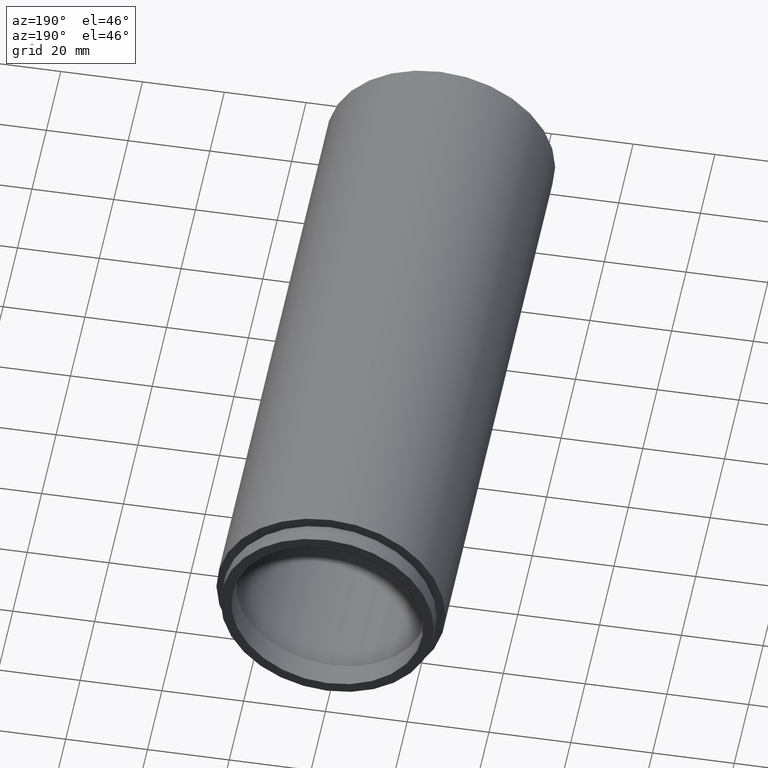
[diagram: clean part render]
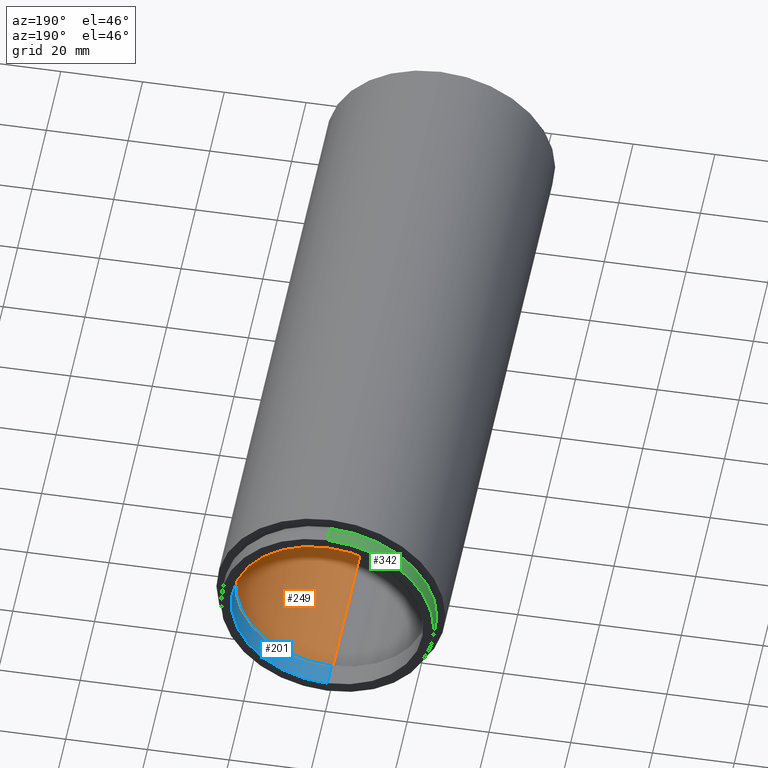
[diagram: same view with three faces highlighted in distinct colors, each labeled with its STEP entity id]
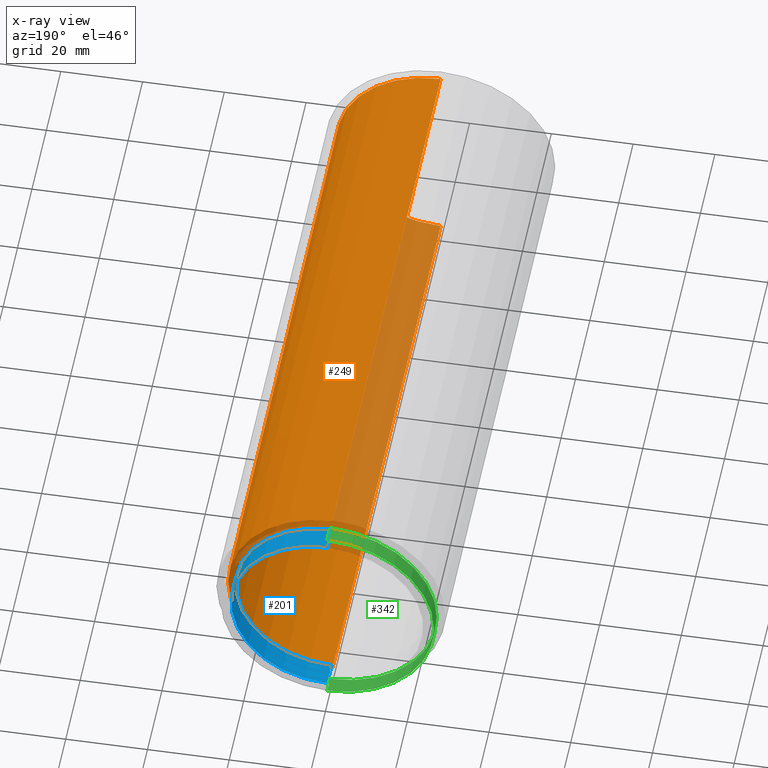
[diagram: x-ray of the same camera — body ghosted, the three highlighted faces saturated]
A machine part, auxiliary view with three faces highlighted in distinct colors.
The next image is the same camera in x-ray (body ghosted, the three faces saturated) — at least one of them is partly hidden behind the body in this view.
Their STEP definitions:

[orange] entity #249 — the highlighted cylindrical surface (partial cylindrical patch) has radius 25.5 mm, axis along (-0, 1, -0).
#13 = CARTESIAN_POINT ( 'NONE',  ( 0.0000000000000000000, -2.775557561562891400E-014, 25.50000000000001800 ) ) ;
#29 = CARTESIAN_POINT ( 'NONE',  ( 0.0000000000000000000, 150.3999999999999800, 25.50000000000001800 ) ) ;
#35 = CARTESIAN_POINT ( 'NONE',  ( 0.0000000000000000000, 161.3761669434274500, 25.50000000000001800 ) ) ;
#45 = DIRECTION ( 'NONE',  ( -0.0000000000000000000, 1.000000000000000000, -0.0000000000000000000 ) ) ;
#58 = FACE_OUTER_BOUND ( 'NONE', #272, .T. ) ;
#64 = DIRECTION ( 'NONE',  ( 0.0000000000000000000, 0.0000000000000000000, 1.000000000000000000 ) ) ;
#72 = DIRECTION ( 'NONE',  ( -0.0000000000000000000, 1.000000000000000000, -0.0000000000000000000 ) ) ;
#74 = AXIS2_PLACEMENT_3D ( 'NONE', #141, #45, #579 ) ;
#83 = CARTESIAN_POINT ( 'NONE',  ( 0.0000000000000000000, 150.3999999999999800, 0.0000000000000000000 ) ) ;
#94 = VERTEX_POINT ( 'NONE', #29 ) ;
#113 = ORIENTED_EDGE ( 'NONE', *, *, #146, .F. ) ;
#126 = CARTESIAN_POINT ( 'NONE',  ( 0.0000000000000000000, -2.775557561562891400E-014, 0.0000000000000000000 ) ) ;
#129 = CARTESIAN_POINT ( 'NONE',  ( 3.122849337825753000E-015, -2.775557561562891400E-014, -25.50000000000001800 ) ) ;
#137 = DIRECTION ( 'NONE',  ( -0.0000000000000000000, 1.000000000000000000, -0.0000000000000000000 ) ) ;
#141 = CARTESIAN_POINT ( 'NONE',  ( 0.0000000000000000000, 161.3761669434274500, 0.0000000000000000000 ) ) ;
#145 = ORIENTED_EDGE ( 'NONE', *, *, #155, .T. ) ;
#146 = EDGE_CURVE ( 'NONE', #157, #180, #264, .T. ) ;
#155 = EDGE_CURVE ( 'NONE', #94, #180, #493, .T. ) ;
#157 = VERTEX_POINT ( 'NONE', #129 ) ;
#180 = VERTEX_POINT ( 'NONE', #239 ) ;
#204 = EDGE_CURVE ( 'NONE', #300, #94, #436, .T. ) ;
#239 = CARTESIAN_POINT ( 'NONE',  ( 3.122849337825753000E-015, 150.3999999999999800, -25.50000000000001800 ) ) ;
#249 = ADVANCED_FACE ( 'NONE', ( #58 ), #524, .F. ) ;
#259 = AXIS2_PLACEMENT_3D ( 'NONE', #126, #72, #64 ) ;
#264 = LINE ( 'NONE', #471, #286 ) ;
#272 = EDGE_LOOP ( 'NONE', ( #113, #452, #431, #145 ) ) ;
#279 = DIRECTION ( 'NONE',  ( -0.0000000000000000000, 1.000000000000000000, -0.0000000000000000000 ) ) ;
#286 = VECTOR ( 'NONE', #279, 1000.000000000000000 ) ;
#300 = VERTEX_POINT ( 'NONE', #13 ) ;
#338 = AXIS2_PLACEMENT_3D ( 'NONE', #83, #424, #613 ) ;
#374 = EDGE_CURVE ( 'NONE', #300, #157, #621, .T. ) ;
#424 = DIRECTION ( 'NONE',  ( -0.0000000000000000000, 1.000000000000000000, -0.0000000000000000000 ) ) ;
#431 = ORIENTED_EDGE ( 'NONE', *, *, #204, .T. ) ;
#436 = LINE ( 'NONE', #35, #516 ) ;
#452 = ORIENTED_EDGE ( 'NONE', *, *, #374, .F. ) ;
#471 = CARTESIAN_POINT ( 'NONE',  ( 3.122849337825753000E-015, 161.3761669434274500, -25.50000000000001800 ) ) ;
#493 = CIRCLE ( 'NONE', #338, 25.50000000000001800 ) ;
#516 = VECTOR ( 'NONE', #137, 1000.000000000000000 ) ;
#524 = CYLINDRICAL_SURFACE ( 'NONE', #74, 25.50000000000001800 ) ;
#579 = DIRECTION ( 'NONE',  ( 0.0000000000000000000, 0.0000000000000000000, 1.000000000000000000 ) ) ;
#613 = DIRECTION ( 'NONE',  ( 0.0000000000000000000, 0.0000000000000000000, 1.000000000000000000 ) ) ;
#621 = CIRCLE ( 'NONE', #259, 25.50000000000001800 ) ;

[blue] entity #201 — the highlighted cylindrical surface (partial cylindrical patch) has radius 23.5 mm, axis along (-0, 1, -0).
#11 = VERTEX_POINT ( 'NONE', #267 ) ;
#15 = DIRECTION ( 'NONE',  ( -0.0000000000000000000, 1.000000000000000000, -0.0000000000000000000 ) ) ;
#24 = VECTOR ( 'NONE', #309, 1000.000000000000000 ) ;
#26 = VERTEX_POINT ( 'NONE', #308 ) ;
#34 = ORIENTED_EDGE ( 'NONE', *, *, #37, .T. ) ;
#37 = EDGE_CURVE ( 'NONE', #11, #26, #235, .T. ) ;
#44 = VERTEX_POINT ( 'NONE', #169 ) ;
#76 = ORIENTED_EDGE ( 'NONE', *, *, #240, .F. ) ;
#131 = CYLINDRICAL_SURFACE ( 'NONE', #423, 23.50000000000000000 ) ;
#135 = ORIENTED_EDGE ( 'NONE', *, *, #173, .T. ) ;
#156 = VECTOR ( 'NONE', #465, 1000.000000000000000 ) ;
#160 = LINE ( 'NONE', #615, #156 ) ;
#169 = CARTESIAN_POINT ( 'NONE',  ( 2.877919977996280300E-015, 151.3999999999999800, -23.50000000000000000 ) ) ;
#173 = EDGE_CURVE ( 'NONE', #26, #226, #340, .T. ) ;
#179 = DIRECTION ( 'NONE',  ( 0.0000000000000000000, 0.0000000000000000000, 1.000000000000000000 ) ) ;
#184 = DIRECTION ( 'NONE',  ( -0.0000000000000000000, 1.000000000000000000, -0.0000000000000000000 ) ) ;
#201 = ADVANCED_FACE ( 'NONE', ( #216 ), #131, .F. ) ;
#216 = FACE_OUTER_BOUND ( 'NONE', #320, .T. ) ;
#226 = VERTEX_POINT ( 'NONE', #316 ) ;
#235 = LINE ( 'NONE', #606, #24 ) ;
#240 = EDGE_CURVE ( 'NONE', #44, #226, #160, .T. ) ;
#267 = CARTESIAN_POINT ( 'NONE',  ( 0.0000000000000000000, 151.3999999999999800, 23.50000000000000000 ) ) ;
#304 = ORIENTED_EDGE ( 'NONE', *, *, #332, .F. ) ;
#308 = CARTESIAN_POINT ( 'NONE',  ( 0.0000000000000000000, 157.3999999999999800, 23.50000000000000000 ) ) ;
#309 = DIRECTION ( 'NONE',  ( -0.0000000000000000000, 1.000000000000000000, -0.0000000000000000000 ) ) ;
#316 = CARTESIAN_POINT ( 'NONE',  ( 2.877919977996280300E-015, 157.3999999999999800, -23.50000000000000000 ) ) ;
#320 = EDGE_LOOP ( 'NONE', ( #76, #304, #34, #135 ) ) ;
#332 = EDGE_CURVE ( 'NONE', #11, #44, #612, .T. ) ;
#340 = CIRCLE ( 'NONE', #392, 23.50000000000000000 ) ;
#377 = DIRECTION ( 'NONE',  ( 0.0000000000000000000, 0.0000000000000000000, 1.000000000000000000 ) ) ;
#392 = AXIS2_PLACEMENT_3D ( 'NONE', #421, #184, #179 ) ;
#421 = CARTESIAN_POINT ( 'NONE',  ( 0.0000000000000000000, 157.3999999999999800, 0.0000000000000000000 ) ) ;
#423 = AXIS2_PLACEMENT_3D ( 'NONE', #517, #560, #377 ) ;
#440 = DIRECTION ( 'NONE',  ( 0.0000000000000000000, 0.0000000000000000000, 1.000000000000000000 ) ) ;
#441 = AXIS2_PLACEMENT_3D ( 'NONE', #444, #15, #440 ) ;
#444 = CARTESIAN_POINT ( 'NONE',  ( 0.0000000000000000000, 151.3999999999999800, 0.0000000000000000000 ) ) ;
#465 = DIRECTION ( 'NONE',  ( -0.0000000000000000000, 1.000000000000000000, -0.0000000000000000000 ) ) ;
#517 = CARTESIAN_POINT ( 'NONE',  ( 0.0000000000000000000, 161.3761669434274500, 0.0000000000000000000 ) ) ;
#560 = DIRECTION ( 'NONE',  ( -0.0000000000000000000, 1.000000000000000000, -0.0000000000000000000 ) ) ;
#606 = CARTESIAN_POINT ( 'NONE',  ( 0.0000000000000000000, 161.3761669434274500, 23.50000000000000000 ) ) ;
#612 = CIRCLE ( 'NONE', #441, 23.50000000000000000 ) ;
#615 = CARTESIAN_POINT ( 'NONE',  ( 2.877919977996280300E-015, 161.3761669434274500, -23.50000000000000000 ) ) ;

[green] entity #342 — the highlighted cylindrical surface (partial cylindrical patch) has radius 26.1 mm, axis along (-0, 1, -0).
#17 = DIRECTION ( 'NONE',  ( 0.0000000000000000000, 0.0000000000000000000, 1.000000000000000000 ) ) ;
#54 = AXIS2_PLACEMENT_3D ( 'NONE', #172, #118, #17 ) ;
#63 = EDGE_CURVE ( 'NONE', #334, #81, #527, .T. ) ;
#68 = VECTOR ( 'NONE', #412, 1000.000000000000000 ) ;
#81 = VERTEX_POINT ( 'NONE', #274 ) ;
#88 = EDGE_CURVE ( 'NONE', #265, #81, #604, .T. ) ;
#107 = ORIENTED_EDGE ( 'NONE', *, *, #63, .F. ) ;
#112 = VECTOR ( 'NONE', #399, 1000.000000000000000 ) ;
#115 = CARTESIAN_POINT ( 'NONE',  ( 0.0000000000000000000, 161.3761669434274500, 26.10000000000000100 ) ) ;
#118 = DIRECTION ( 'NONE',  ( -0.0000000000000000000, 1.000000000000000000, -0.0000000000000000000 ) ) ;
#144 = ORIENTED_EDGE ( 'NONE', *, *, #275, .T. ) ;
#172 = CARTESIAN_POINT ( 'NONE',  ( 0.0000000000000000000, 157.3999999999999800, 0.0000000000000000000 ) ) ;
#191 = CYLINDRICAL_SURFACE ( 'NONE', #297, 26.10000000000000100 ) ;
#206 = VERTEX_POINT ( 'NONE', #281 ) ;
#209 = DIRECTION ( 'NONE',  ( -0.0000000000000000000, 1.000000000000000000, -0.0000000000000000000 ) ) ;
#212 = CARTESIAN_POINT ( 'NONE',  ( 3.196328145774592300E-015, 161.3761669434274500, -26.10000000000000100 ) ) ;
#265 = VERTEX_POINT ( 'NONE', #427 ) ;
#274 = CARTESIAN_POINT ( 'NONE',  ( 0.0000000000000000000, 157.3999999999999800, 26.10000000000000100 ) ) ;
#275 = EDGE_CURVE ( 'NONE', #206, #265, #394, .T. ) ;
#281 = CARTESIAN_POINT ( 'NONE',  ( 3.196328145774592300E-015, 153.3999999999999800, -26.10000000000000100 ) ) ;
#292 = CARTESIAN_POINT ( 'NONE',  ( 0.0000000000000000000, 153.3999999999999800, 0.0000000000000000000 ) ) ;
#297 = AXIS2_PLACEMENT_3D ( 'NONE', #350, #209, #500 ) ;
#311 = EDGE_CURVE ( 'NONE', #206, #334, #466, .T. ) ;
#318 = FACE_OUTER_BOUND ( 'NONE', #401, .T. ) ;
#334 = VERTEX_POINT ( 'NONE', #541 ) ;
#342 = ADVANCED_FACE ( 'NONE', ( #318 ), #191, .T. ) ;
#350 = CARTESIAN_POINT ( 'NONE',  ( 0.0000000000000000000, 161.3761669434274500, 0.0000000000000000000 ) ) ;
#386 = DIRECTION ( 'NONE',  ( 0.0000000000000000000, 0.0000000000000000000, 1.000000000000000000 ) ) ;
#394 = CIRCLE ( 'NONE', #491, 26.10000000000000100 ) ;
#399 = DIRECTION ( 'NONE',  ( -0.0000000000000000000, 1.000000000000000000, -0.0000000000000000000 ) ) ;
#401 = EDGE_LOOP ( 'NONE', ( #408, #144, #508, #107 ) ) ;
#408 = ORIENTED_EDGE ( 'NONE', *, *, #311, .F. ) ;
#412 = DIRECTION ( 'NONE',  ( -0.0000000000000000000, 1.000000000000000000, -0.0000000000000000000 ) ) ;
#427 = CARTESIAN_POINT ( 'NONE',  ( 0.0000000000000000000, 153.3999999999999800, 26.10000000000000100 ) ) ;
#466 = LINE ( 'NONE', #212, #112 ) ;
#491 = AXIS2_PLACEMENT_3D ( 'NONE', #292, #618, #386 ) ;
#500 = DIRECTION ( 'NONE',  ( 0.0000000000000000000, 0.0000000000000000000, 1.000000000000000000 ) ) ;
#508 = ORIENTED_EDGE ( 'NONE', *, *, #88, .T. ) ;
#527 = CIRCLE ( 'NONE', #54, 26.10000000000000100 ) ;
#541 = CARTESIAN_POINT ( 'NONE',  ( 3.196328145774592300E-015, 157.3999999999999800, -26.10000000000000100 ) ) ;
#604 = LINE ( 'NONE', #115, #68 ) ;
#618 = DIRECTION ( 'NONE',  ( -0.0000000000000000000, 1.000000000000000000, -0.0000000000000000000 ) ) ;